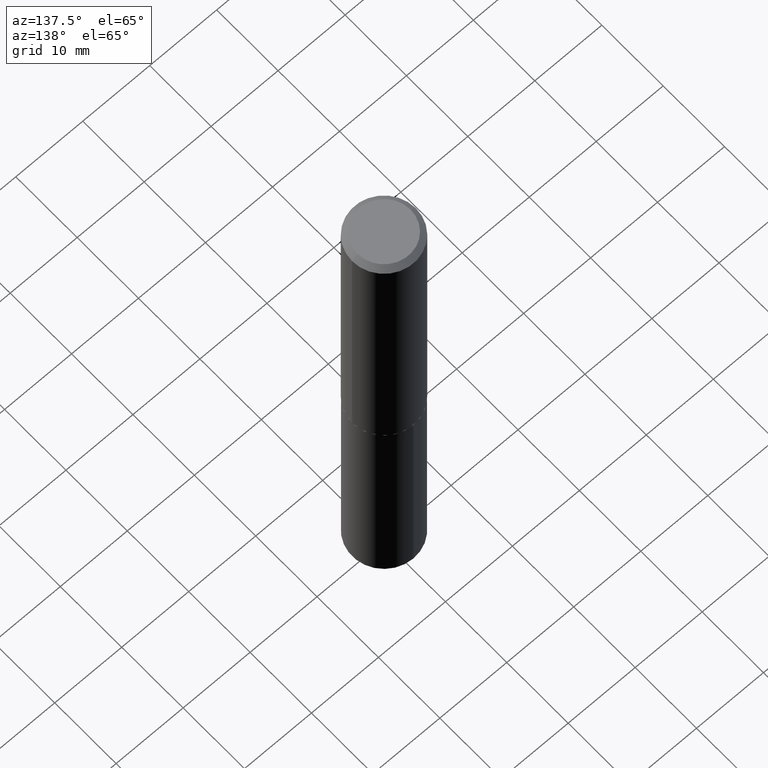
[diagram: clean part render]
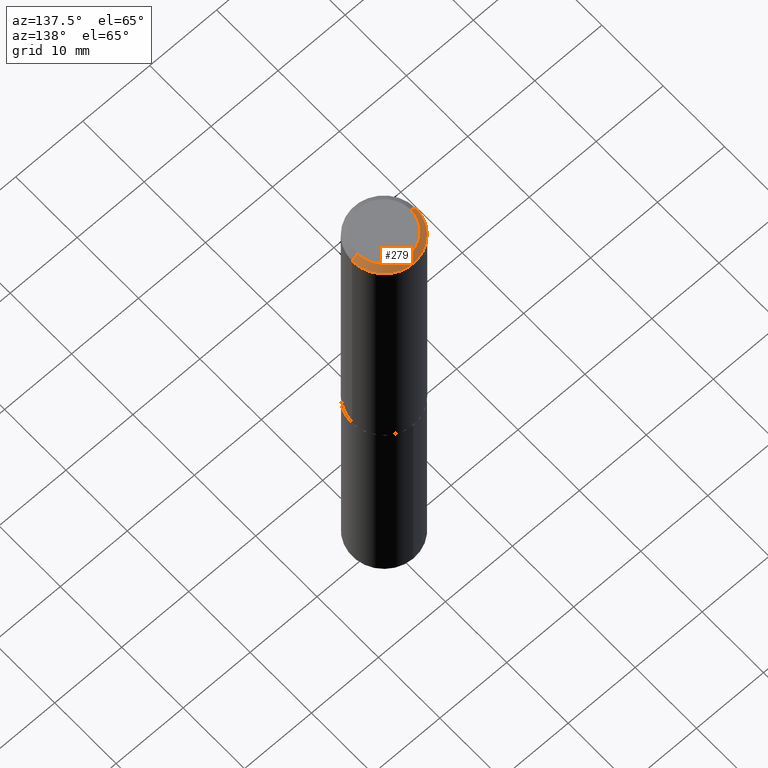
[diagram: same view with one face highlighted and labeled with its STEP entity id]
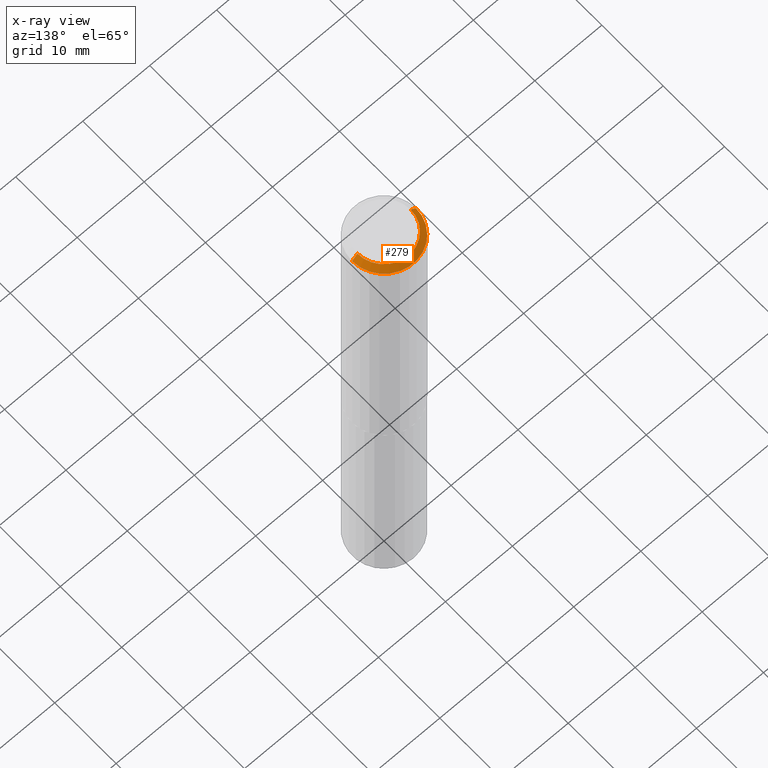
[diagram: x-ray of the same camera — body ghosted, the highlighted face saturated]
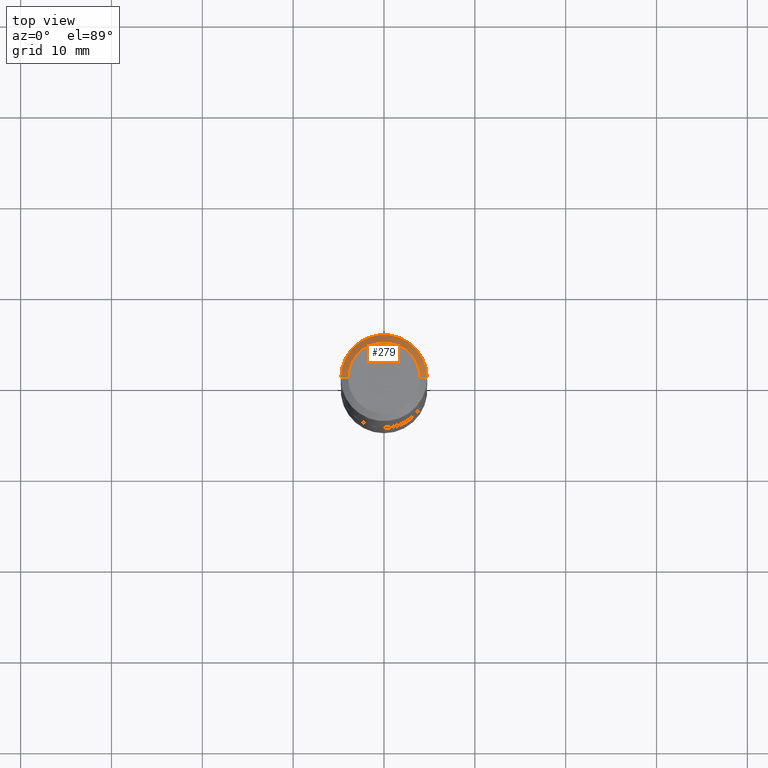
[diagram: same view with one face highlighted and labeled with its STEP entity id]
A machine part, auxiliary view. The second image highlights one B-rep face of the part: STEP entity #279.
The next image is the same camera in x-ray: the body ghosted, the highlighted face saturated — about 0% of this face is hidden behind the body in this view.
A second angle (top view) of the same face is appended — the face is thin or edge-on in the first view.
In plain terms, the highlighted conical surface has half-angle 45 deg.
Its self-contained STEP definition (entity closure, byte-faithful):
#7 = DIRECTION ( 'NONE',  ( 1.000000000000000000, -6.982962677686265922E-15, 0.000000000000000000 ) ) ;
#14 = LINE ( 'NONE', #19, #235 ) ;
#19 = CARTESIAN_POINT ( 'NONE',  ( 0.1875000000000000278, -1.395452166421011466E-15, -0.03125000000000022204 ) ) ;
#29 = DIRECTION ( 'NONE',  ( 1.000000000000000000, -6.982962677686266711E-15, 4.876166487936958658E-29 ) ) ;
#38 = LINE ( 'NONE', #93, #191 ) ;
#45 = EDGE_CURVE ( 'NONE', #114, #337, #293, .T. ) ;
#52 = ORIENTED_EDGE ( 'NONE', *, *, #379, .T. ) ;
#60 = DIRECTION ( 'NONE',  ( -2.445468806185136597E-29, 3.491481338843145583E-15, 1.000000000000000000 ) ) ;
#72 = CARTESIAN_POINT ( 'NONE',  ( 7.642090019328606165E-31, -1.091087918388490760E-16, -0.03125000000000022204 ) ) ;
#79 = ORIENTED_EDGE ( 'NONE', *, *, #213, .F. ) ;
#83 = CARTESIAN_POINT ( 'NONE',  ( 0.1562500000000000000, -1.233702489286406538E-15, 9.552245033430668582E-19 ) ) ;
#93 = CARTESIAN_POINT ( 'NONE',  ( -0.1875000000000000278, 1.200196710227325908E-15, -0.03125000000000022204 ) ) ;
#106 = EDGE_LOOP ( 'NONE', ( #309, #52, #344, #79 ) ) ;
#114 = VERTEX_POINT ( 'NONE', #83 ) ;
#123 = CARTESIAN_POINT ( 'NONE',  ( -2.335971725809281832E-47, 3.335148527799649409E-33, 9.552245033349382783E-19 ) ) ;
#146 = AXIS2_PLACEMENT_3D ( 'NONE', #123, #60, #29 ) ;
#159 = CARTESIAN_POINT ( 'NONE',  ( -0.1875000000000000278, -1.667351275683429579E-15, -0.03125000000000022204 ) ) ;
#166 = CARTESIAN_POINT ( 'NONE',  ( 7.642090019328606165E-31, -1.091087918388490760E-16, -0.03125000000000022204 ) ) ;
#180 = AXIS2_PLACEMENT_3D ( 'NONE', #166, #220, #273 ) ;
#191 = VECTOR ( 'NONE', #251, 39.37007874015748143 ) ;
#213 = EDGE_CURVE ( 'NONE', #337, #283, #38, .T. ) ;
#220 = DIRECTION ( 'NONE',  ( 2.445468806185136597E-29, -3.491481338843145583E-15, -1.000000000000000000 ) ) ;
#230 = DIRECTION ( 'NONE',  ( 0.7071067811865451302, -7.319954787623248157E-15, -0.7071067811865499042 ) ) ;
#235 = VECTOR ( 'NONE', #230, 39.37007874015748143 ) ;
#251 = DIRECTION ( 'NONE',  ( -0.7071067811865451302, 2.468850131082231817E-15, -0.7071067811865499042 ) ) ;
#252 = FACE_OUTER_BOUND ( 'NONE', #106, .T. ) ;
#254 = AXIS2_PLACEMENT_3D ( 'NONE', #72, #303, #7 ) ;
#273 = DIRECTION ( 'NONE',  ( -1.000000000000000000, 6.982962677686265922E-15, 0.000000000000000000 ) ) ;
#279 = ADVANCED_FACE ( 'NONE', ( #252 ), #312, .T. ) ;
#280 = CARTESIAN_POINT ( 'NONE',  ( -0.1562500000000000000, 1.145642314307902541E-15, 9.552245033271172694E-19 ) ) ;
#283 = VERTEX_POINT ( 'NONE', #159 ) ;
#293 = CIRCLE ( 'NONE', #146, 0.1562500000000000000 ) ;
#303 = DIRECTION ( 'NONE',  ( -2.445468806185136597E-29, 3.491481338843145583E-15, 1.000000000000000000 ) ) ;
#304 = EDGE_CURVE ( 'NONE', #369, #283, #358, .T. ) ;
#309 = ORIENTED_EDGE ( 'NONE', *, *, #45, .F. ) ;
#312 = CONICAL_SURFACE ( 'NONE', #180, 0.1875000000000000278, 0.7853981633974449483 ) ;
#337 = VERTEX_POINT ( 'NONE', #280 ) ;
#344 = ORIENTED_EDGE ( 'NONE', *, *, #304, .T. ) ;
#358 = CIRCLE ( 'NONE', #254, 0.1875000000000000278 ) ;
#369 = VERTEX_POINT ( 'NONE', #377 ) ;
#377 = CARTESIAN_POINT ( 'NONE',  ( 0.1875000000000000278, -1.418414293905024109E-15, -0.03125000000000022204 ) ) ;
#379 = EDGE_CURVE ( 'NONE', #114, #369, #14, .T. ) ;